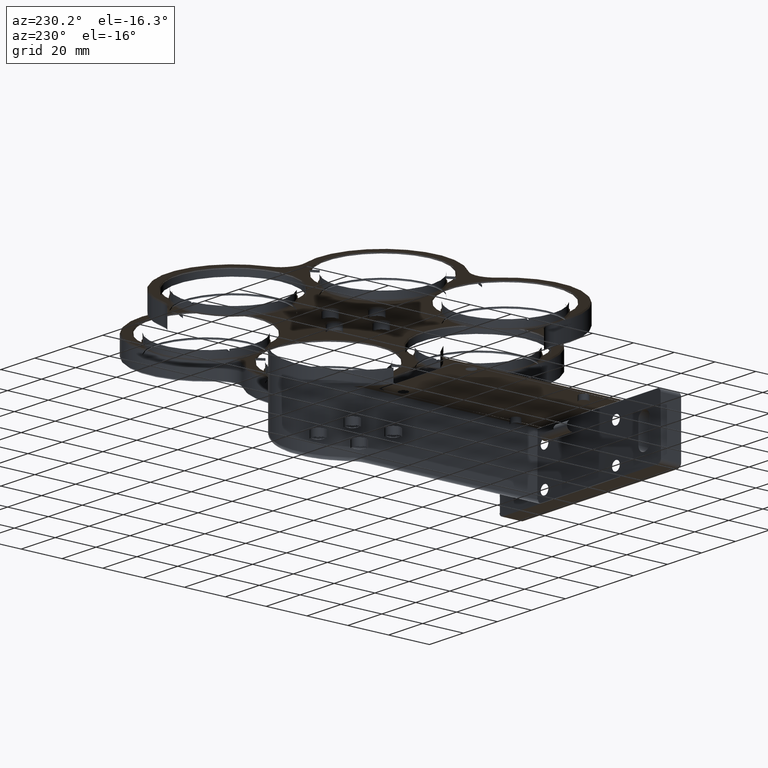
[diagram: clean part render]
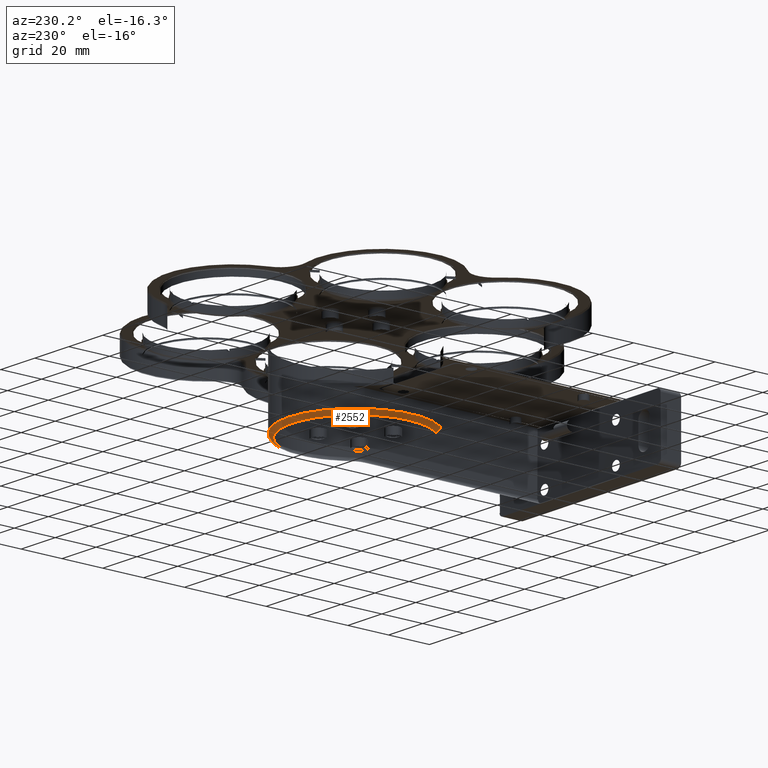
[diagram: same view with one face highlighted and labeled with its STEP entity id]
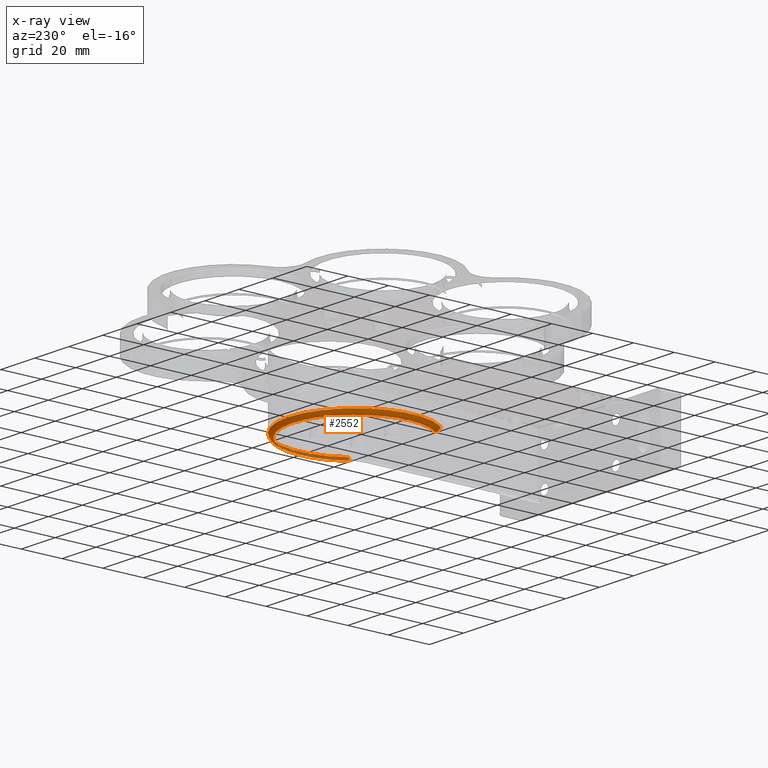
[diagram: x-ray of the same camera — body ghosted, the highlighted face saturated]
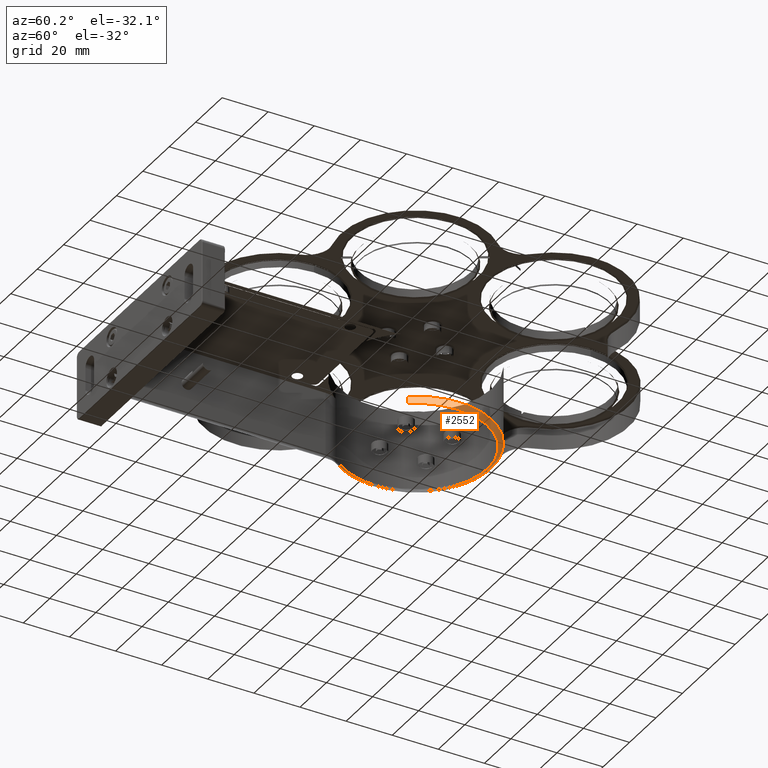
[diagram: same view with one face highlighted and labeled with its STEP entity id]
A machine part, auxiliary view. The second image highlights one B-rep face of the part: STEP entity #2552.
The next image is the same camera in x-ray: the body ghosted, the highlighted face saturated — about 0% of this face is hidden behind the body in this view.
A second angle (auxiliary view) of the same face is appended — the face is thin or edge-on in the first view.
In plain terms, the highlighted face is a freeform B-spline surface patch.
Its self-contained STEP definition (entity closure, byte-faithful):
#25 = CARTESIAN_POINT ( 'NONE',  ( 26.39216309509838965, 74.45568723398866950, 133.2499999999716636 ) ) ;
#37 = CARTESIAN_POINT ( 'NONE',  ( -35.18593855043738472, 67.64164380550569433, 133.2499999999716636 ) ) ;
#115 = CARTESIAN_POINT ( 'NONE',  ( 21.00074172568810482, 51.62263491826288941, 133.2499999999716636 ) ) ;
#166 = CARTESIAN_POINT ( 'NONE',  ( -9.055970195407740064, 100.2554582797308598, 133.2499999999716920 ) ) ;
#239 = CARTESIAN_POINT ( 'NONE',  ( 25.19837255588907965, 79.39455030887546627, 133.2499999999716920 ) ) ;
#316 = CARTESIAN_POINT ( 'NONE',  ( -9.756101493621983423, 100.1352880779898129, 133.2499999999716636 ) ) ;
#388 = CARTESIAN_POINT ( 'NONE',  ( 25.72321209081840365, 77.72330602781825348, 133.2499999999716636 ) ) ;
#456 = CARTESIAN_POINT ( 'NONE',  ( -31.54129313764417120, 84.36672995813533760, 133.2499999999716920 ) ) ;
#488 = CARTESIAN_POINT ( 'NONE',  ( 21.00074172568809416, 51.62263491826289652, 133.2499999999716636 ) ) ;
#553 = VERTEX_POINT ( 'NONE', #1767 ) ;
#627 = CARTESIAN_POINT ( 'NONE',  ( 39.30378287316776920, 75.25069719615498798, 133.2499999999716636 ) ) ;
#666 = CARTESIAN_POINT ( 'NONE',  ( -15.61231879476021511, 98.46695149295426575, 133.2499999999716636 ) ) ;
#773 = FACE_OUTER_BOUND ( 'NONE', #6266, .T. ) ;
#842 = CARTESIAN_POINT ( 'NONE',  ( -33.50866057237787032, 59.40804001762681708, 133.2499999999716636 ) ) ;
#914 = CARTESIAN_POINT ( 'NONE',  ( -35.23181641384678642, 69.63146635550477015, 133.2499999999716636 ) ) ;
#990 = EDGE_CURVE ( 'NONE', #553, #12023, #13950, .T. ) ;
#1269 = CARTESIAN_POINT ( 'NONE',  ( 14.26881515474312678, 94.51605127926376326, 133.2499999999716351 ) ) ;
#1341 = CARTESIAN_POINT ( 'NONE',  ( 12.95494789253160661, 95.43107891096857998, 133.2499999999716920 ) ) ;
#1383 = DIRECTION ( 'NONE',  ( 0.5809300463626420052, -0.8139534883720930258, -0.000000000000000000 ) ) ;
#1414 = CARTESIAN_POINT ( 'NONE',  ( 13.50786668019117087, 95.05653379766401656, 133.2499999999716351 ) ) ;
#1488 = CARTESIAN_POINT ( 'NONE',  ( 22.67728922529514790, 85.03905814946845965, 133.2499999999716636 ) ) ;
#1559 = CARTESIAN_POINT ( 'NONE',  ( -0.4550661552838662360, 100.4589227186419436, 133.2499999999716351 ) ) ;
#1611 = CARTESIAN_POINT ( 'NONE',  ( 26.76818358615321003, 69.63146635550477015, 133.2499999999716636 ) ) ;
#1623 = CARTESIAN_POINT ( 'NONE',  ( -21.08560167425889276, 95.64980994098202416, 133.2499999999716351 ) ) ;
#1656 = CARTESIAN_POINT ( 'NONE',  ( -34.09674667079282528, 101.8030392307585572, 133.2499999999716636 ) ) ;
#1698 = CARTESIAN_POINT ( 'NONE',  ( -18.04110567334066673, 97.42065457500164882, 133.2499999999716636 ) ) ;
#1727 = CARTESIAN_POINT ( 'NONE',  ( -34.86577709400035019, 102.6314663555047417, 135.2499999999716636 ) ) ;
#1767 = CARTESIAN_POINT ( 'NONE',  ( -31.09228153012584883, 50.46077482553756965, 135.2499999999716636 ) ) ;
#1770 = CARTESIAN_POINT ( 'NONE',  ( -35.23181641384678642, 69.63146635550477015, 133.2499999999716636 ) ) ;
#1796 = CARTESIAN_POINT ( 'NONE',  ( 26.40214426630673827, 102.6314663555047844, 135.2499999999716636 ) ) ;
#1833 = CARTESIAN_POINT ( 'NONE',  ( -24.63907119862182071, 93.06477944094164911, 133.2499999999716636 ) ) ;
#1915 = CARTESIAN_POINT ( 'NONE',  ( -34.54393982558185172, 76.13451686779299621, 133.2499999999716351 ) ) ;
#1939 = CARTESIAN_POINT ( 'NONE',  ( 25.86062206300037403, 62.10878972891668326, 133.2499999999716636 ) ) ;
#2023 = ORIENTED_EDGE ( 'NONE', *, *, #4971, .F. ) ;
#2150 = CARTESIAN_POINT ( 'NONE',  ( 26.27200332124317583, 75.15576217592258956, 133.2499999999716067 ) ) ;
#2364 = CARTESIAN_POINT ( 'NONE',  ( -9.841783094405407439, 100.1196481207098543, 133.2499999999716920 ) ) ;
#2428 = CARTESIAN_POINT ( 'NONE',  ( 23.28381454785381166, 55.35209769292339388, 133.2499999999716920 ) ) ;
#2439 = CARTESIAN_POINT ( 'NONE',  ( 4.822292010956172881, 99.30982005488777986, 133.2499999999716636 ) ) ;
#2506 = CARTESIAN_POINT ( 'NONE',  ( 10.50344718876524475, 96.94094307931565879, 133.2499999999716636 ) ) ;
#2552 = ADVANCED_FACE ( 'NONE', ( #773 ), #4733, .F. ) ;
#2580 = CARTESIAN_POINT ( 'NONE',  ( 2.271234098417980629, 99.94358976724653587, 133.2499999999716920 ) ) ;
#2631 = AXIS2_PLACEMENT_3D ( 'NONE', #14399, #10001, #8816 ) ;
#2633 = EDGE_CURVE ( 'NONE', #6275, #12023, #14077, .T. ) ;
#2656 = CARTESIAN_POINT ( 'NONE',  ( 8.862616026599049235, 97.73893396901547703, 133.2499999999716351 ) ) ;
#2730 = CARTESIAN_POINT ( 'NONE',  ( -20.42266248499205261, 96.06971987534585367, 133.2499999999716920 ) ) ;
#2756 = CARTESIAN_POINT ( 'NONE',  ( -33.00917341641526548, 100.6314663555047417, 133.2499999999716636 ) ) ;
#2793 = CARTESIAN_POINT ( 'NONE',  ( -26.90865434663374600, 90.79527513796081450, 133.2499999999716351 ) ) ;
#2826 = CARTESIAN_POINT ( 'NONE',  ( -4.231816413846803293, 102.6314663555047701, 135.2499999999716636 ) ) ;
#2871 = CARTESIAN_POINT ( 'NONE',  ( -34.69118100550680595, 75.39584870500357283, 133.2499999999716636 ) ) ;
#2901 = CARTESIAN_POINT ( 'NONE',  ( 24.54554058872166777, 100.6314663555047417, 133.2499999999716636 ) ) ;
#2945 = CARTESIAN_POINT ( 'NONE',  ( -33.00681352633470311, 81.16405681423741214, 133.2499999999716636 ) ) ;
#2972 = CARTESIAN_POINT ( 'NONE',  ( 26.40214426630673827, 102.6314663555047844, 134.0784271247178481 ) ) ;
#3015 = CARTESIAN_POINT ( 'NONE',  ( -32.70752153334834134, 81.88948373417750304, 133.2499999999716636 ) ) ;
#3114 = CARTESIAN_POINT ( 'NONE',  ( 26.15763548408785866, 63.48566775337928192, 133.2499999999716636 ) ) ;
#3192 = CARTESIAN_POINT ( 'NONE',  ( -29.46437455338165989, 51.62263491826285389, 133.2499999999716636 ) ) ;
#3203 = CARTESIAN_POINT ( 'NONE',  ( 22.62864870243229376, 50.46077482553760518, 135.2499999999716636 ) ) ;
#3340 = CARTESIAN_POINT ( 'NONE',  ( -33.09581056716596947, 58.27297355813028901, 133.2499999999716636 ) ) ;
#3465 = CARTESIAN_POINT ( 'NONE',  ( 7.300774044884550840, 98.40646346799360344, 133.2499999999716636 ) ) ;
#3543 = CARTESIAN_POINT ( 'NONE',  ( 24.90523575022270464, 80.22140036015036912, 133.2499999999716636 ) ) ;
#3606 = CARTESIAN_POINT ( 'NONE',  ( 22.11934698494437512, 53.26890975338376677, 133.2499999999716636 ) ) ;
#3616 = CARTESIAN_POINT ( 'NONE',  ( 24.20609117462996451, 82.01627804806470579, 133.2499999999716636 ) ) ;
#3686 = CARTESIAN_POINT ( 'NONE',  ( 26.06775898978055750, 76.26073519518513422, 133.2499999999716920 ) ) ;
#3763 = CARTESIAN_POINT ( 'NONE',  ( 19.20149667150577244, 90.03872114033650575, 133.2499999999716636 ) ) ;
#3838 = CARTESIAN_POINT ( 'NONE',  ( -30.75184515612471614, 85.71830130616208976, 133.2499999999716920 ) ) ;
#3933 = CARTESIAN_POINT ( 'NONE',  ( -48.88846972831881033, 75.39539398380210855, 135.2499999999716636 ) ) ;
#4008 = CARTESIAN_POINT ( 'NONE',  ( 22.62864870243229021, 50.46077482553761229, 135.2499999999716636 ) ) ;
#4051 = CARTESIAN_POINT ( 'NONE',  ( -30.10530341608889771, 86.70680368970154461, 133.2499999999717204 ) ) ;
#4081 = CARTESIAN_POINT ( 'NONE',  ( -30.41798038207663168, 50.94203303352447421, 133.2499999999716636 ) ) ;
#4190 = CARTESIAN_POINT ( 'NONE',  ( -35.23181641384678642, 69.63146635550477015, 133.2499999999716636 ) ) ;
#4192 = ORIENTED_EDGE ( 'NONE', *, *, #9328, .F. ) ;
#4223 = CARTESIAN_POINT ( 'NONE',  ( -32.01880816087151516, 55.88762236007185180, 133.2499999999716636 ) ) ;
#4357 = CARTESIAN_POINT ( 'NONE',  ( 26.76818358615321003, 69.63146635550477015, 133.2499999999716636 ) ) ;
#4364 = CARTESIAN_POINT ( 'NONE',  ( 24.79886743368977520, 58.63954208066925844, 133.2499999999716920 ) ) ;
#4372 = CARTESIAN_POINT ( 'NONE',  ( -31.21236657069734832, 54.28237885629270210, 133.2499999999716636 ) ) ;
#4503 = CARTESIAN_POINT ( 'NONE',  ( 26.32376510254991686, 74.86421806736667861, 133.2499999999716920 ) ) ;
#4517 = CARTESIAN_POINT ( 'NONE',  ( -34.24698187995783627, 61.71358494939618566, 133.2499999999716920 ) ) ;
#4577 = CARTESIAN_POINT ( 'NONE',  ( 7.239982526854472411, 98.43075223433038445, 133.2499999999716920 ) ) ;
#4649 = CARTESIAN_POINT ( 'NONE',  ( 24.67194444175968826, 80.83770010955807095, 133.2499999999716636 ) ) ;
#4727 = CARTESIAN_POINT ( 'NONE',  ( -13.99490036730714593, 99.06165532519534622, 133.2499999999716636 ) ) ;
#4733 =( BOUNDED_SURFACE ( )  B_SPLINE_SURFACE ( 3, 3, ( 
 ( #4008, #10583, #1796, #2826, #1727, #3933, #6362 ),
 ( #12999, #6219, #2972, #12858, #11905, #10727, #7246 ),
 ( #6284, #627, #8435, #14173, #1656, #12922, #4081 ),
 ( #488, #7460, #2901, #8584, #2756, #11970, #4981 ) ),
 .UNSPECIFIED., .F., .F., .F. ) 
 B_SPLINE_SURFACE_WITH_KNOTS ( ( 4, 4 ),
 ( 4, 3, 4 ),
 ( 0.000000000000000000, 1.000000000000000000 ),
 ( 0.000000000000000000, 0.5000000000000000000, 1.000000000000000000 ),
 .UNSPECIFIED. ) 
 GEOMETRIC_REPRESENTATION_ITEM ( )  RATIONAL_B_SPLINE_SURFACE ( (
 ( 1.000000000000000000, 0.6384999376068964949, 0.6384999376068964949, 1.000000000000000000, 0.6384999376068964949, 0.6384999376068964949, 1.000000000000000000),
 ( 0.8047378541243634942, 0.5138250696483138702, 0.5138250696483138702, 0.8047378541243634942, 0.5138250696483138702, 0.5138250696483138702, 0.8047378541243634942),
 ( 0.8047378541243634942, 0.5138250696483138702, 0.5138250696483138702, 0.8047378541243634942, 0.5138250696483138702, 0.5138250696483138702, 0.8047378541243634942),
 ( 1.000000000000000000, 0.6384999376068964949, 0.6384999376068964949, 1.000000000000000000, 0.6384999376068964949, 0.6384999376068964949, 1.000000000000000000) ) ) 
 REPRESENTATION_ITEM ( '' )  SURFACE ( )  );
#4802 = CARTESIAN_POINT ( 'NONE',  ( -5.179696045842590912, 100.6314825713818379, 133.2499999999716920 ) ) ;
#4865 = ORIENTED_EDGE ( 'NONE', *, *, #9787, .F. ) ;
#4871 = CARTESIAN_POINT ( 'NONE',  ( 1.840876357797313512, 100.0313183694333929, 133.2499999999716636 ) ) ;
#4950 = CARTESIAN_POINT ( 'NONE',  ( -29.92011669792482920, 86.98496311304450046, 133.2499999999716920 ) ) ;
#4971 = EDGE_CURVE ( 'NONE', #6480, #8486, #11429, .T. ) ;
#4981 = CARTESIAN_POINT ( 'NONE',  ( -29.46437455338165989, 51.62263491826288941, 133.2499999999716636 ) ) ;
#5023 = CARTESIAN_POINT ( 'NONE',  ( -22.98629694333129692, 94.40746793507351242, 133.2499999999716636 ) ) ;
#5091 = CARTESIAN_POINT ( 'NONE',  ( -35.05930522081806089, 73.40804130842953157, 133.2499999999716351 ) ) ;
#5235 = CARTESIAN_POINT ( 'NONE',  ( -30.14285426821875546, 86.64976042321181637, 133.2499999999716636 ) ) ;
#5326 = CARTESIAN_POINT ( 'NONE',  ( 21.46392789562115055, 52.27161494803289798, 133.2499999999716636 ) ) ;
#5544 = ORIENTED_EDGE ( 'NONE', *, *, #9963, .F. ) ;
#5551 = CARTESIAN_POINT ( 'NONE',  ( 26.76818358615321714, 68.03647204464238030, 133.2499999999716636 ) ) ;
#5756 = CARTESIAN_POINT ( 'NONE',  ( 20.54418516583051257, 88.38594688485311224, 133.2499999999716351 ) ) ;
#5828 = CARTESIAN_POINT ( 'NONE',  ( -14.82175041854470798, 98.76851851954786810, 133.2499999999716636 ) ) ;
#5900 = CARTESIAN_POINT ( 'NONE',  ( -9.464532180928534544, 100.1870545229447771, 133.2499999999716636 ) ) ;
#5975 = CARTESIAN_POINT ( 'NONE',  ( 15.74501531020734291, 93.37901890411944805, 133.2499999999716636 ) ) ;
#6046 = CARTESIAN_POINT ( 'NONE',  ( 26.25636535135722838, 75.24143303606552990, 133.2499999999716920 ) ) ;
#6061 = B_SPLINE_CURVE_WITH_KNOTS ( 'NONE', 3,
 ( #4357, #8861, #13343, #7739, #25, #4503, #7891, #2150, #13720, #6046, #3686, #388, #239, #3543, #13790, #4649, #8045, #7960, #8262, #3616, #6860, #1488, #12545, #12468, #8115, #12759, #9081, #5756, #3763, #11370, #5975, #1269, #1414, #12613, #1341, #10553, #10264, #10486, #2506, #2656, #7002, #8183, #9370, #3465, #4577, #10413, #7150, #2439, #9148, #2580, #4871, #9230, #13856, #6934, #11665, #1559, #13572, #4802, #11512, #11592, #166, #5900, #10331, #316, #13648, #2364, #11441, #7080, #4727, #5828, #9302, #12676, #7506, #12969, #666, #11806, #1698, #14147, #2730, #7219, #11943, #1623, #13935, #5023, #1833, #2793, #13039, #12020, #6327, #4950, #6191, #4051, #5235, #3838, #456, #6260, #3015, #12893, #9521, #2945, #10841, #11732, #7362, #11876, #10627, #1915, #14007, #8482, #2871, #8337, #8554, #5091, #10700, #1770 ),
 .UNSPECIFIED., .F., .F.,
 ( 4, 1, 1, 1, 1, 1, 2, 2, 1, 1, 1, 1, 1, 2, 2, 1, 1, 1, 1, 2, 2, 2, 1, 1, 1, 1, 2, 2, 1, 1, 1, 1, 1, 2, 2, 1, 1, 1, 1, 1, 2, 2, 2, 1, 1, 1, 1, 1, 2, 2, 1, 1, 1, 1, 1, 2, 2, 1, 1, 1, 1, 2, 2, 2, 1, 1, 1, 1, 2, 2, 1, 1, 1, 1, 1, 2, 2, 1, 1, 1, 1, 1, 2, 2, 4 ),
 ( 0.000000000000000000, 0.03124999999998284705, 0.04687499999997449956, 0.05468749999997032929, 0.05859374999996824068, 0.06054687499996697780, 0.06152343749996657535, 0.06249999999996616595, 0.09374999999995839439, 0.1093749999999545086, 0.1171874999999525657, 0.1210937499999515665, 0.1230468749999512612, 0.1240234374999513167, 0.1249999999999513445, 0.1562499999999521771, 0.1718749999999523992, 0.1796874999999524825, 0.1835937499999525380, 0.1855468749999523992, 0.1874999999999522327, 0.2499999999999520384, 0.2812499999999519273, 0.2968749999999519273, 0.3046874999999519829, 0.3085937499999520939, 0.3105468749999519829, 0.3124999999999519273, 0.3437499999999519829, 0.3593749999999519273, 0.3671874999999520384, 0.3710937499999520939, 0.3730468749999520384, 0.3740234374999520939, 0.3749999999999520939, 0.4062499999999530931, 0.4218749999999535372, 0.4296874999999537592, 0.4335937499999538702, 0.4355468749999538702, 0.4365234374999539813, 0.4374999999999540368, 0.4999999999999569233, 0.5312499999999583666, 0.5468749999999591438, 0.5546874999999595879, 0.5585937499999596989, 0.5605468749999599209, 0.5615234374999599209, 0.5624999999999599209, 0.5937499999999615863, 0.6093749999999624745, 0.6171874999999630296, 0.6210937499999632516, 0.6230468749999634737, 0.6240234374999634737, 0.6249999999999634737, 0.6562499999999639178, 0.6718749999999642508, 0.6796874999999645839, 0.6835937499999644729, 0.6855468749999646949, 0.6874999999999648059, 0.7499999999999662492, 0.7812499999999668043, 0.7968749999999671374, 0.8046874999999673594, 0.8085937499999675815, 0.8105468749999679146, 0.8124999999999681366, 0.8437499999999714673, 0.8593749999999733546, 0.8671874999999743538, 0.8710937499999745759, 0.8730468749999750200, 0.8740234374999752420, 0.8749999999999754641, 0.9062499999999799050, 0.9218749999999821254, 0.9296874999999833467, 0.9335937499999835687, 0.9355468749999837907, 0.9365234374999839018, 0.9374999999999840128, 1.000000000000000000 ),
 .UNSPECIFIED. ) ;
#6191 = CARTESIAN_POINT ( 'NONE',  ( -30.03142896931742101, 86.81823066187303084, 133.2499999999716636 ) ) ;
#6219 = CARTESIAN_POINT ( 'NONE',  ( 40.42483690062521617, 75.39539398380212276, 134.0784271247178481 ) ) ;
#6260 = CARTESIAN_POINT ( 'NONE',  ( -32.33928402734741780, 82.72589879596455376, 133.2499999999716636 ) ) ;
#6266 = EDGE_LOOP ( 'NONE', ( #12537, #11896, #5544, #2023, #4865, #4192 ) ) ;
#6275 = VERTEX_POINT ( 'NONE', #4190 ) ;
#6284 = CARTESIAN_POINT ( 'NONE',  ( 21.95434755438306240, 50.94203303352447421, 133.2499999999716636 ) ) ;
#6327 = CARTESIAN_POINT ( 'NONE',  ( -29.65688385602779320, 87.37114944951045459, 133.2499999999716920 ) ) ;
#6362 = CARTESIAN_POINT ( 'NONE',  ( -31.09228153012585949, 50.46077482553758387, 135.2499999999716636 ) ) ;
#6433 = CARTESIAN_POINT ( 'NONE',  ( 26.36971437948009012, 64.67601771535711919, 133.2499999999717772 ) ) ;
#6480 = VERTEX_POINT ( 'NONE', #115 ) ;
#6502 = CARTESIAN_POINT ( 'NONE',  ( 26.38586805774146526, 64.77685778342046774, 133.2499999999716636 ) ) ;
#6509 = CARTESIAN_POINT ( 'NONE',  ( -32.23952441931549373, 56.34083189857523877, 133.2499999999716920 ) ) ;
#6654 = CARTESIAN_POINT ( 'NONE',  ( -30.39095467236816361, 52.92088610156366002, 133.2499999999716636 ) ) ;
#6860 = CARTESIAN_POINT ( 'NONE',  ( 23.55737180564137745, 83.44075561498627280, 133.2499999999716636 ) ) ;
#6924 = CARTESIAN_POINT ( 'NONE',  ( 23.37501098685185497, 55.52923317580082596, 133.2499999999716920 ) ) ;
#6934 = CARTESIAN_POINT ( 'NONE',  ( 1.470821900158361561, 100.1024503554779415, 133.2499999999716920 ) ) ;
#7002 = CARTESIAN_POINT ( 'NONE',  ( 8.026200964817865824, 98.10717147501222257, 133.2499999999716636 ) ) ;
#7080 = CARTESIAN_POINT ( 'NONE',  ( -12.32365608627982922, 99.58649486010959606, 133.2499999999716920 ) ) ;
#7150 = CARTESIAN_POINT ( 'NONE',  ( 6.244509639622756403, 98.82492524869745409, 133.2499999999716636 ) ) ;
#7219 = CARTESIAN_POINT ( 'NONE',  ( -20.81031537606141057, 95.82659110840880601, 133.2499999999716636 ) ) ;
#7246 = CARTESIAN_POINT ( 'NONE',  ( -31.09228153012587370, 50.46077482553758387, 134.0784271247178481 ) ) ;
#7362 = CARTESIAN_POINT ( 'NONE',  ( -33.42527530703075911, 80.10779240900497200, 133.2499999999716351 ) ) ;
#7460 = CARTESIAN_POINT ( 'NONE',  ( 37.71837306338446894, 75.04606503663258366, 133.2499999999716636 ) ) ;
#7506 = CARTESIAN_POINT ( 'NONE',  ( -15.52581886146326262, 98.50093997388279377, 133.2499999999716636 ) ) ;
#7579 = AXIS2_PLACEMENT_3D ( 'NONE', #9126, #1383, #11709 ) ;
#7739 = CARTESIAN_POINT ( 'NONE',  ( 26.51480777139225964, 73.63734180584256706, 133.2499999999716636 ) ) ;
#7891 = CARTESIAN_POINT ( 'NONE',  ( 26.28779719267525650, 75.06832301388188000, 133.2499999999716920 ) ) ;
#7960 = CARTESIAN_POINT ( 'NONE',  ( 24.61470762662941425, 80.98395515807422385, 133.2499999999716920 ) ) ;
#8045 = CARTESIAN_POINT ( 'NONE',  ( 24.63765720453544361, 80.92546880311284951, 133.2499999999716351 ) ) ;
#8115 = CARTESIAN_POINT ( 'NONE',  ( 21.85745971595093451, 86.37525064656520613, 133.2499999999716351 ) ) ;
#8183 = CARTESIAN_POINT ( 'NONE',  ( 7.603993563752747598, 98.28360074329729912, 133.2499999999716920 ) ) ;
#8262 = CARTESIAN_POINT ( 'NONE',  ( 24.60366872360286905, 81.01196873641838181, 133.2499999999716636 ) ) ;
#8337 = CARTESIAN_POINT ( 'NONE',  ( -34.70280041381943903, 75.33410466951183082, 133.2499999999717204 ) ) ;
#8435 = CARTESIAN_POINT ( 'NONE',  ( 25.63311384309923469, 101.8030392307585572, 133.2499999999716636 ) ) ;
#8482 = CARTESIAN_POINT ( 'NONE',  ( -34.67361490566639048, 75.48842510450239729, 133.2499999999716351 ) ) ;
#8486 = VERTEX_POINT ( 'NONE', #1611 ) ;
#8554 = CARTESIAN_POINT ( 'NONE',  ( -34.70889185997844351, 75.30145035015392807, 133.2499999999716636 ) ) ;
#8584 = CARTESIAN_POINT ( 'NONE',  ( -4.231816413846796188, 100.6314663555047559, 133.2499999999716636 ) ) ;
#8730 = CARTESIAN_POINT ( 'NONE',  ( -31.97337547822370141, 55.79615907783480111, 133.2499999999716920 ) ) ;
#8751 = CIRCLE ( 'NONE', #2631, 33.00000000000000000 ) ;
#8816 = DIRECTION ( 'NONE',  ( 1.000000000000000000, 0.000000000000000000, 0.000000000000000000 ) ) ;
#8861 = CARTESIAN_POINT ( 'NONE',  ( 26.76818358615320648, 70.57943362429789147, 133.2499999999716636 ) ) ;
#8868 = CARTESIAN_POINT ( 'NONE',  ( 26.64584261706145796, 66.45109741535816283, 133.2499999999716636 ) ) ;
#9081 = CARTESIAN_POINT ( 'NONE',  ( 21.75163378605955700, 86.53900064249388890, 133.2499999999716636 ) ) ;
#9126 = CARTESIAN_POINT ( 'NONE',  ( -29.46437455338166700, 51.62263491826285389, 135.2499999999716636 ) ) ;
#9148 = CARTESIAN_POINT ( 'NONE',  ( 3.127508360918485053, 99.75278997726734076, 133.2499999999716351 ) ) ;
#9230 = CARTESIAN_POINT ( 'NONE',  ( 1.625142335144369898, 100.0732648473262145, 133.2499999999716636 ) ) ;
#9302 = CARTESIAN_POINT ( 'NONE',  ( -15.23298242184446494, 98.61427085717652119, 133.2499999999716920 ) ) ;
#9328 = EDGE_CURVE ( 'NONE', #553, #14517, #8751, .T. ) ;
#9370 = CARTESIAN_POINT ( 'NONE',  ( 7.391889895676552413, 98.36989300626144939, 133.2499999999716920 ) ) ;
#9521 = CARTESIAN_POINT ( 'NONE',  ( -32.97024306460187404, 81.25517266503035785, 133.2499999999716636 ) ) ;
#9787 = EDGE_CURVE ( 'NONE', #14517, #6480, #10892, .T. ) ;
#9822 = CARTESIAN_POINT ( 'NONE',  ( 24.18993073930521476, 57.14904887712363291, 133.2499999999716636 ) ) ;
#9900 = CARTESIAN_POINT ( 'NONE',  ( 21.00074172568810482, 51.62263491826288941, 133.2499999999716636 ) ) ;
#9963 = EDGE_CURVE ( 'NONE', #8486, #6275, #6061, .T. ) ;
#10001 = DIRECTION ( 'NONE',  ( -0.000000000000000000, -0.000000000000000000, -1.000000000000000000 ) ) ;
#10264 = CARTESIAN_POINT ( 'NONE',  ( 12.78647765386091883, 95.54250420987624182, 133.2499999999716351 ) ) ;
#10331 = CARTESIAN_POINT ( 'NONE',  ( -9.668654500754161774, 100.1510833983991802, 133.2499999999717488 ) ) ;
#10413 = CARTESIAN_POINT ( 'NONE',  ( 7.208326143288418031, 98.44334051468204905, 133.2499999999716636 ) ) ;
#10486 = CARTESIAN_POINT ( 'NONE',  ( 11.85501853679993722, 96.15149509779040216, 133.2499999999716636 ) ) ;
#10553 = CARTESIAN_POINT ( 'NONE',  ( 12.84352092035514481, 95.50495335774336070, 133.2499999999716636 ) ) ;
#10583 = CARTESIAN_POINT ( 'NONE',  ( 40.42483690062521617, 75.39539398380212276, 135.2499999999716636 ) ) ;
#10627 = CARTESIAN_POINT ( 'NONE',  ( -34.35314003559791018, 76.99079113031027077, 133.2499999999716636 ) ) ;
#10700 = CARTESIAN_POINT ( 'NONE',  ( -35.23181641384677931, 71.52775643350406654, 133.2499999999716636 ) ) ;
#10727 = CARTESIAN_POINT ( 'NONE',  ( -48.88846972831882454, 75.39539398380209434, 134.0784271247178481 ) ) ;
#10841 = CARTESIAN_POINT ( 'NONE',  ( -33.03110229267192466, 81.10326529620665781, 133.2499999999716067 ) ) ;
#10892 = CIRCLE ( 'NONE', #14161, 1.999999999999998890 ) ;
#11076 = CARTESIAN_POINT ( 'NONE',  ( 22.81512229939620440, 54.47411369084427690, 133.2499999999716636 ) ) ;
#11082 = CARTESIAN_POINT ( 'NONE',  ( -34.96515133277960530, 65.56539825272915323, 133.2499999999716636 ) ) ;
#11158 = CARTESIAN_POINT ( 'NONE',  ( -34.89490085443394918, 65.07239272414648212, 133.2499999999717488 ) ) ;
#11370 = CARTESIAN_POINT ( 'NONE',  ( 16.93199236865138602, 92.30830428826337197, 133.2499999999716636 ) ) ;
#11429 = B_SPLINE_CURVE_WITH_KNOTS ( 'NONE', 3,
 ( #9900, #5326, #3606, #11076, #14299, #2428, #6924, #12181, #9822, #4364, #12043, #1939, #3114, #11431, #12113, #6433, #6502, #8868, #5551, #14523 ),
 .UNSPECIFIED., .F., .F.,
 ( 4, 1, 1, 1, 2, 2, 2, 1, 1, 1, 2, 2, 4 ),
 ( 0.000000000000000000, 0.1250000000000048017, 0.1875000000000067168, 0.2187500000000072442, 0.2343750000000069944, 0.2500000000000067724, 0.5000000000000043299, 0.6250000000000024425, 0.6875000000000005551, 0.7187499999999996669, 0.7343749999999991118, 0.7499999999999985567, 1.000000000000000000 ),
 .UNSPECIFIED. ) ;
#11431 = CARTESIAN_POINT ( 'NONE',  ( 26.28608410977006926, 64.17890552428941930, 133.2499999999716351 ) ) ;
#11441 = CARTESIAN_POINT ( 'NONE',  ( -10.86108525359548871, 99.93104175909758169, 133.2499999999716636 ) ) ;
#11512 = CARTESIAN_POINT ( 'NONE',  ( -6.595712597936493005, 100.5668030359038880, 133.2499999999716920 ) ) ;
#11592 = CARTESIAN_POINT ( 'NONE',  ( -8.237576840888095830, 100.3781118240824810, 133.2499999999716636 ) ) ;
#11665 = CARTESIAN_POINT ( 'NONE',  ( 1.438164841651783821, 100.1085423085713018, 133.2499999999716351 ) ) ;
#11709 = DIRECTION ( 'NONE',  ( 0.8139534883720920266, 0.5809300463626432265, 0.000000000000000000 ) ) ;
#11732 = CARTESIAN_POINT ( 'NONE',  ( -33.04369057302436374, 81.07160891263900737, 133.2499999999716351 ) ) ;
#11806 = CARTESIAN_POINT ( 'NONE',  ( -16.61662810641379551, 98.06937394398650554, 133.2499999999716636 ) ) ;
#11876 = CARTESIAN_POINT ( 'NONE',  ( -33.91017011321453367, 78.68557478036133546, 133.2499999999716636 ) ) ;
#11896 = ORIENTED_EDGE ( 'NONE', *, *, #2633, .F. ) ;
#11905 = CARTESIAN_POINT ( 'NONE',  ( -34.86577709400036440, 102.6314663555047701, 134.0784271247178481 ) ) ;
#11943 = CARTESIAN_POINT ( 'NONE',  ( -20.97560070490895257, 95.72074248530371676, 133.2499999999716636 ) ) ;
#11970 = CARTESIAN_POINT ( 'NONE',  ( -46.18200589107804177, 75.04606503663256944, 133.2499999999716636 ) ) ;
#12020 = CARTESIAN_POINT ( 'NONE',  ( -29.11640133764304750, 88.13209792403937115, 133.2499999999716351 ) ) ;
#12023 = VERTEX_POINT ( 'NONE', #13325 ) ;
#12043 = CARTESIAN_POINT ( 'NONE',  ( 25.53726855397154694, 60.94506145199029135, 133.2499999999716067 ) ) ;
#12106 = CARTESIAN_POINT ( 'NONE',  ( 21.00074172568810482, 51.62263491826288941, 135.2499999999716636 ) ) ;
#12113 = CARTESIAN_POINT ( 'NONE',  ( 26.33683535973497669, 64.47703573153921752, 133.2499999999716920 ) ) ;
#12174 = DIRECTION ( 'NONE',  ( 0.8139534883720941361, -0.5809300463626401179, 0.000000000000000000 ) ) ;
#12181 = CARTESIAN_POINT ( 'NONE',  ( 23.41966783826129728, 55.61699220153289502, 133.2499999999716920 ) ) ;
#12188 = CARTESIAN_POINT ( 'NONE',  ( -32.53769586276371228, 56.97971486656370388, 133.2499999999716636 ) ) ;
#12338 = CARTESIAN_POINT ( 'NONE',  ( -34.88026759953137201, 64.97501845225876593, 133.2499999999716636 ) ) ;
#12468 = CARTESIAN_POINT ( 'NONE',  ( 21.96330833905523505, 86.20996531771646687, 133.2499999999716636 ) ) ;
#12537 = ORIENTED_EDGE ( 'NONE', *, *, #990, .T. ) ;
#12545 = CARTESIAN_POINT ( 'NONE',  ( 22.20643710599045662, 85.82231242664461490, 133.2499999999716636 ) ) ;
#12613 = CARTESIAN_POINT ( 'NONE',  ( 13.12168034371022429, 95.31976663957112805, 133.2499999999716636 ) ) ;
#12676 = CARTESIAN_POINT ( 'NONE',  ( -15.43805016791458584, 98.53522721110391558, 133.2499999999716920 ) ) ;
#12759 = CARTESIAN_POINT ( 'NONE',  ( 21.78652717162984942, 86.48525161591598476, 133.2499999999716636 ) ) ;
#12858 = CARTESIAN_POINT ( 'NONE',  ( -4.231816413846803293, 102.6314663555047701, 134.0784271247178481 ) ) ;
#12893 = CARTESIAN_POINT ( 'NONE',  ( -32.88395080163613216, 81.46727633310861449, 133.2499999999716920 ) ) ;
#12922 = CARTESIAN_POINT ( 'NONE',  ( -47.76741570086134914, 75.25069719615497377, 133.2499999999716636 ) ) ;
#12969 = CARTESIAN_POINT ( 'NONE',  ( -15.58430521642048383, 98.47799039597883564, 133.2499999999716351 ) ) ;
#12999 = CARTESIAN_POINT ( 'NONE',  ( 22.62864870243229021, 50.46077482553760518, 134.0784271247178481 ) ) ;
#13039 = CARTESIAN_POINT ( 'NONE',  ( -27.97936896251111349, 89.60829807948512382, 133.2499999999716351 ) ) ;
#13200 = DIRECTION ( 'NONE',  ( 0.5809300463626413391, 0.8139534883720932479, 0.000000000000000000 ) ) ;
#13325 = CARTESIAN_POINT ( 'NONE',  ( -29.46437455338165989, 51.62263491826285389, 133.2499999999716636 ) ) ;
#13343 = CARTESIAN_POINT ( 'NONE',  ( 26.70349188876744151, 71.99551590398982626, 133.2499999999716920 ) ) ;
#13357 = CARTESIAN_POINT ( 'NONE',  ( -34.61720801921348567, 63.28052671394515727, 133.2499999999716351 ) ) ;
#13440 = CARTESIAN_POINT ( 'NONE',  ( -35.05212811549326091, 66.25646707073042307, 133.2499999999716351 ) ) ;
#13572 = CARTESIAN_POINT ( 'NONE',  ( -2.336057149855202741, 100.6314339237506630, 133.2499999999717204 ) ) ;
#13648 = CARTESIAN_POINT ( 'NONE',  ( -9.814391933013164149, 100.1246736145667882, 133.2499999999716636 ) ) ;
#13720 = CARTESIAN_POINT ( 'NONE',  ( 26.26138983964083806, 75.21404730917959114, 133.2499999999717488 ) ) ;
#13790 = CARTESIAN_POINT ( 'NONE',  ( 24.75098808783909377, 80.63263236347438578, 133.2499999999716636 ) ) ;
#13856 = CARTESIAN_POINT ( 'NONE',  ( 1.532565935648269262, 100.0908309471658697, 133.2499999999716920 ) ) ;
#13935 = CARTESIAN_POINT ( 'NONE',  ( -21.13935070083167744, 95.61491655541450996, 133.2499999999716636 ) ) ;
#13950 = CIRCLE ( 'NONE', #7579, 2.000000000000000000 ) ;
#14007 = CARTESIAN_POINT ( 'NONE',  ( -34.63166842777188492, 75.70415912716141804, 133.2499999999716920 ) ) ;
#14077 = B_SPLINE_CURVE_WITH_KNOTS ( 'NONE', 3,
 ( #914, #14462, #37, #13440, #11082, #14385, #11158, #12338, #13357, #4517, #842, #3340, #12188, #6509, #14306, #4223, #8730, #4372, #6654, #3192 ),
 .UNSPECIFIED., .F., .F.,
 ( 4, 1, 1, 1, 2, 2, 2, 1, 1, 1, 2, 2, 4 ),
 ( 0.000000000000000000, 0.1250000000000024980, 0.1875000000000048572, 0.2187500000000060507, 0.2343750000000054956, 0.2500000000000049405, 0.5000000000000000000, 0.6249999999999971134, 0.6874999999999952260, 0.7187499999999940048, 0.7343749999999936717, 0.7499999999999933387, 1.000000000000000000 ),
 .UNSPECIFIED. ) ;
#14147 = CARTESIAN_POINT ( 'NONE',  ( -19.63940820781974494, 96.54057199465323436, 133.2499999999716636 ) ) ;
#14161 = AXIS2_PLACEMENT_3D ( 'NONE', #12106, #13200, #12174 ) ;
#14173 = CARTESIAN_POINT ( 'NONE',  ( -4.231816413846796188, 101.8030392307585572, 133.2499999999716636 ) ) ;
#14299 = CARTESIAN_POINT ( 'NONE',  ( 23.14578988418247363, 55.08713899237897493, 133.2499999999716636 ) ) ;
#14306 = CARTESIAN_POINT ( 'NONE',  ( -32.10764078114189601, 56.06868485039336036, 133.2499999999717204 ) ) ;
#14385 = CARTESIAN_POINT ( 'NONE',  ( -34.92357451906482879, 65.26955151988282466, 133.2499999999716636 ) ) ;
#14399 = CARTESIAN_POINT ( 'NONE',  ( -4.231816413846789970, 69.63146635550477015, 135.2499999999716636 ) ) ;
#14462 = CARTESIAN_POINT ( 'NONE',  ( -35.23181641384678642, 68.83414803320907538, 133.2499999999716636 ) ) ;
#14517 = VERTEX_POINT ( 'NONE', #3203 ) ;
#14523 = CARTESIAN_POINT ( 'NONE',  ( 26.76818358615321003, 69.63146635550477015, 133.2499999999716636 ) ) ;